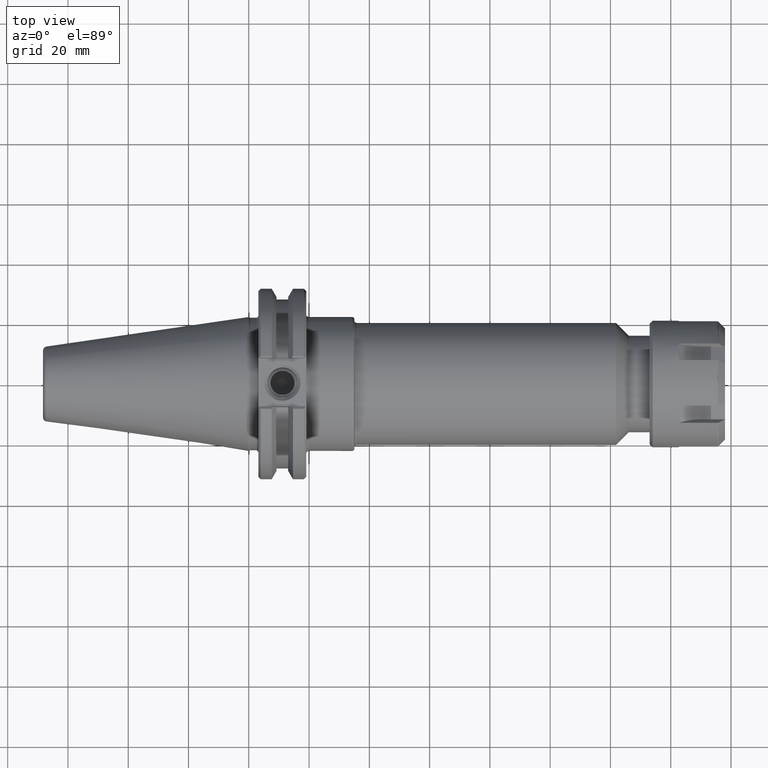
[diagram: clean part render]
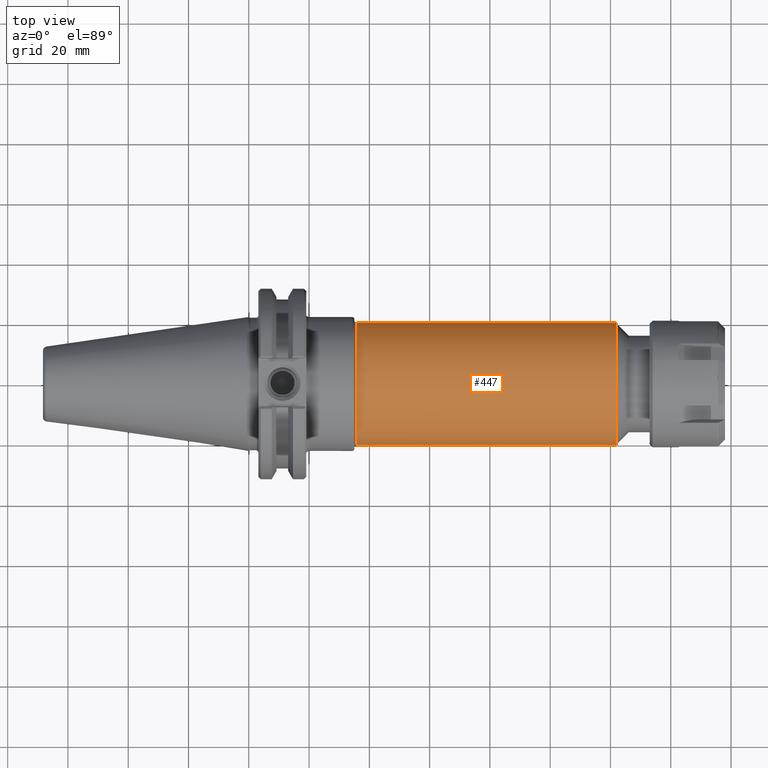
[diagram: same view with one face highlighted and labeled with its STEP entity id]
A machine part, top view. The second image highlights one B-rep face of the part: STEP entity #447.
In plain terms, the highlighted cylindrical surface (bore or boss wall) has radius 20.2565 mm, axis along (1, 0, 0).
Its self-contained STEP definition (entity closure, byte-faithful):
#413=CARTESIAN_POINT('',(1.41,0.7975,0.0));
#414=VERTEX_POINT('',#413);
#415=CARTESIAN_POINT('',(1.41,0.0,0.0));
#416=DIRECTION('',(-1.0,0.0,0.0));
#417=DIRECTION('',(0.0,-1.0,0.0));
#418=AXIS2_PLACEMENT_3D('',#415,#416,#417);
#419=CIRCLE('',#418,0.7975);
#420=EDGE_CURVE('',#414,#414,#419,.T.);
#428=CARTESIAN_POINT('',(3.088710629921261,0.0,0.0));
#429=DIRECTION('',(1.0,0.0,0.0));
#430=DIRECTION('',(0.0,1.0,0.0));
#431=AXIS2_PLACEMENT_3D('',#428,#429,#430);
#432=CYLINDRICAL_SURFACE('',#431,0.7975);
#433=CARTESIAN_POINT('',(4.797421259842521,0.7975,0.0));
#434=VERTEX_POINT('',#433);
#435=CARTESIAN_POINT('',(4.797421259842521,0.0,0.0));
#436=DIRECTION('',(1.0,0.0,0.0));
#437=DIRECTION('',(0.0,1.0,0.0));
#438=AXIS2_PLACEMENT_3D('',#435,#436,#437);
#439=CIRCLE('',#438,0.7975);
#440=EDGE_CURVE('',#434,#434,#439,.T.);
#441=ORIENTED_EDGE('',*,*,#440,.F.);
#442=EDGE_LOOP('',(#441));
#443=FACE_OUTER_BOUND('',#442,.T.);
#444=ORIENTED_EDGE('',*,*,#420,.F.);
#445=EDGE_LOOP('',(#444));
#446=FACE_BOUND('',#445,.T.);
#447=ADVANCED_FACE('',(#443,#446),#432,.T.);